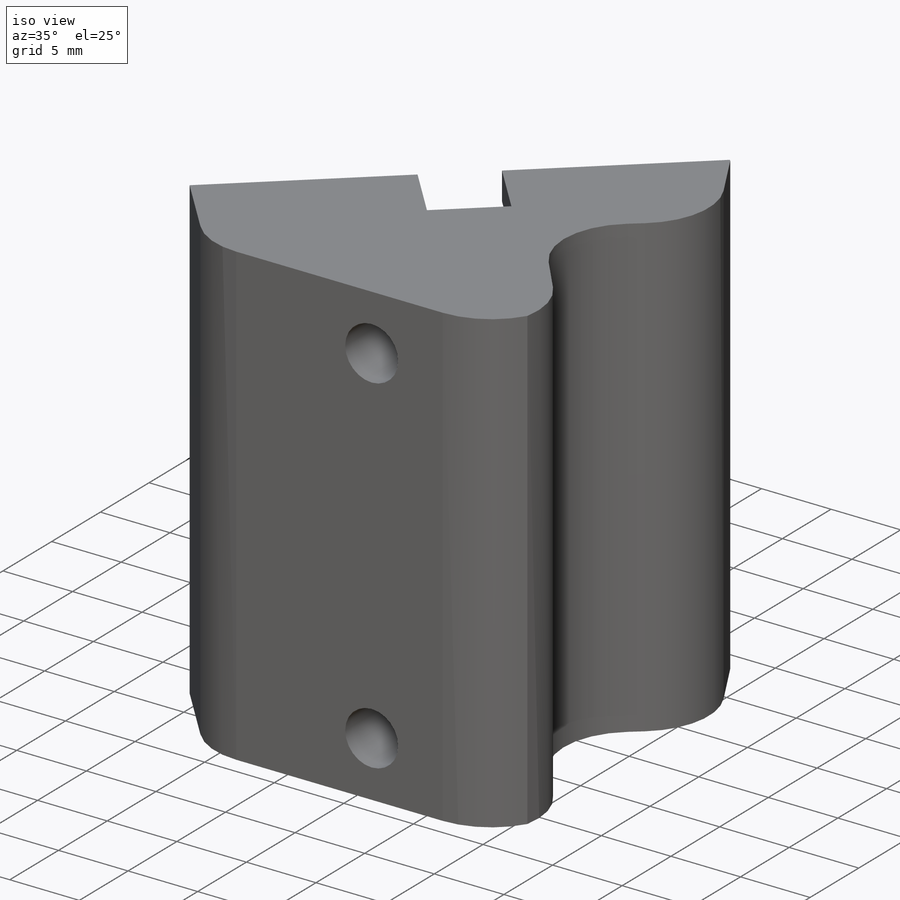
[diagram: iso view]
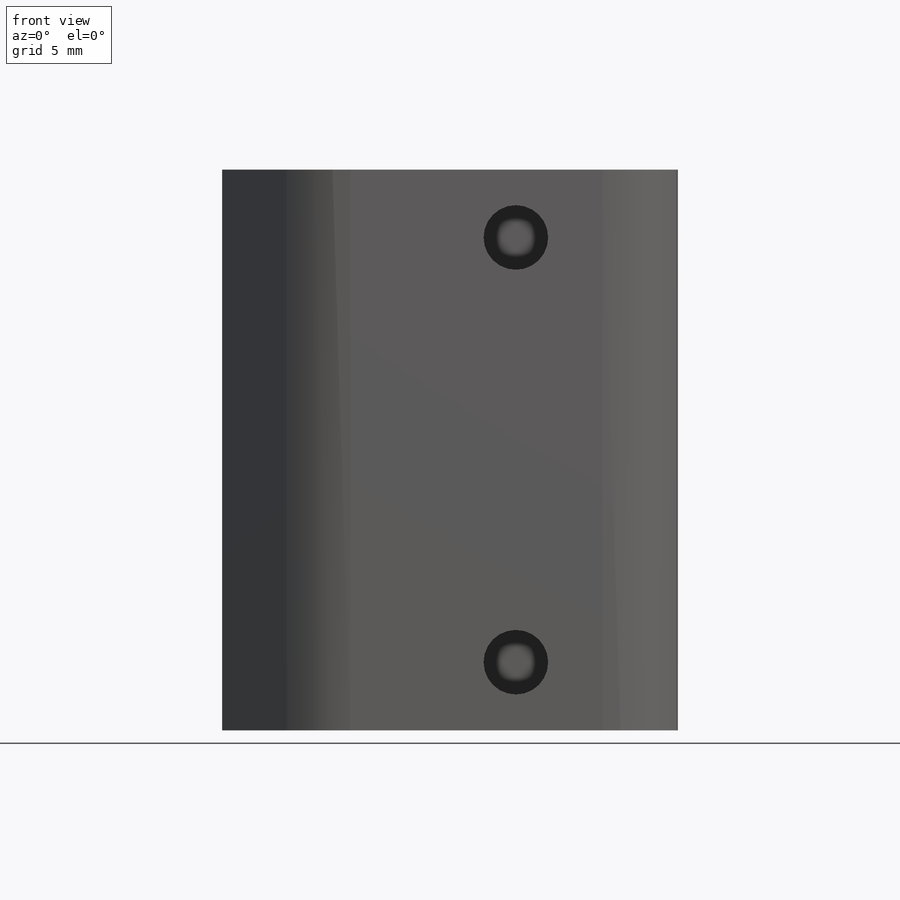
[diagram: front view]
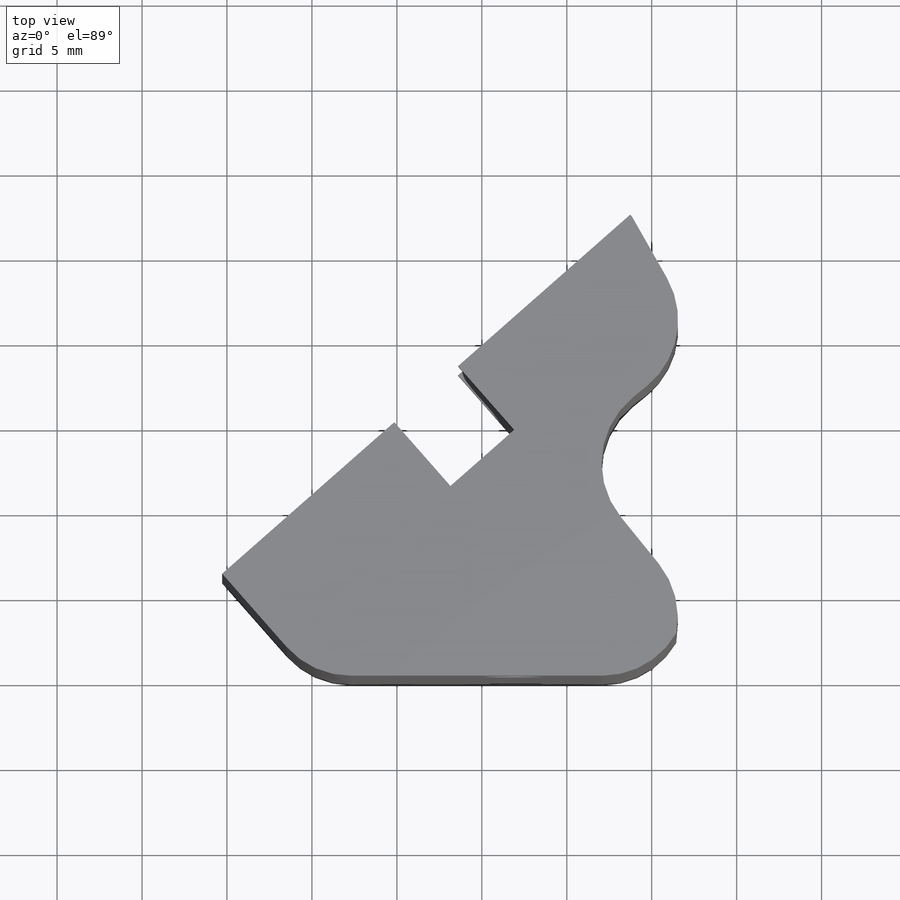
[diagram: top view]
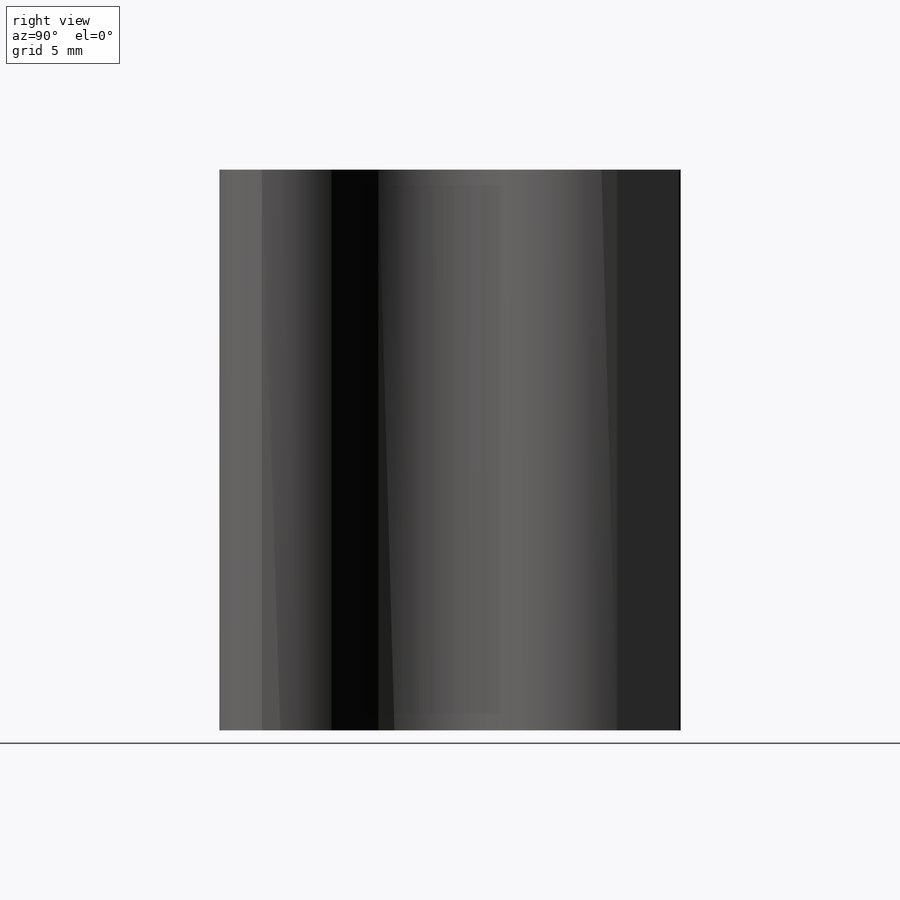
[diagram: right view]
SOLIDWORKS PART (.sldprt)
format: sldprt  version: not decoded by parser v0  size: 407,040 bytes
history: native  units: mm
features: sketch x9, extrude x5, cut_extrude x4, fillet x2, material x1 (+12 scaffold rows collapsed)
feature tree (33):
  scaffold x12  (default folders/planes/origin — collapsed)
  material  "Material <not specified>"
  sketch  "Sketch1"  dims[c1.D1=~21.295573mm c2.D1=120.0deg c2.D2=20.0mm c2.D3=10.0mm c2.D4=~34.641016mm c3.D4=13.4deg c3.D5=~4.656806mm c4.D5=90.0deg c4.D3=32.0mm c4.D4=~44.721559mm c5.D4=60.0deg c5.D6=~44.721559mm c6.D6=11.35deg]
  extrude  "Boss-Extrude1"  Depth=33mm
  sketch  "Sketch2"
  extrude  "Boss-Extrude2"  Depth=3mm
  sketch  "Sketch3"  dims[c1.D2=3.8mm c1.D3=3.8mm c1.D1=12.0mm c1.D4=12.5mm c1.D5=12.5mm c2.D1=12.0mm c2.D6=16.5mm]
  cut_extrude  "Cut-Extrude1"  Depth=7mm
  fillet  "Fillet1"  Radius=5mm
  sketch  "Sketch5"  dims[c1.D6=4.0mm c1.D7=4.0mm c1.D8=4.0mm c1.D9=4.0mm c1.D1=12.3mm c1.D2=12.3mm c1.D3=12.3mm c1.D4=12.3mm c1.D5=~12.201782mm c2.D5=90.0deg c3.D5=11.9mm c3.D10=11.9mm c3.D11=11.9mm c3.D12=11.9mm]
  extrude  "Boss-Extrude3"  Depth=5mm
  sketch  "Sketch6"  dims[D1=2.0mm]
  extrude  "Boss-Extrude4"  Depth=5mm
  sketch  "Sketch9"
  extrude  "Boss-Extrude5"  Depth=5mm
  sketch  "Sketch7"  dims[c1.D3=1.5mm c1.D4=1.5mm c1.D5=1.5mm c1.D6=1.5mm c1.D1=5.0mm c1.D2=5.0mm c2.D1=5.0mm]
  cut_extrude  "Cut-Extrude3"  Depth=5mm
  sketch  "Sketch8"
  cut_extrude  "Cut-Extrude4"  [1 undecoded]
  sketch  "Sketch10"
  cut_extrude  "Cut-Extrude5"  [1 undecoded]
  fillet  "Fillet4"  Radius=5mm
decode coverage: 14 of 20 modeling features carry decoded parameters
note: ~ marks probable driven/reference dimensions
note: 2 parameter values undecoded
note: suppression state not decoded; provenance and decode notes live in map.json
